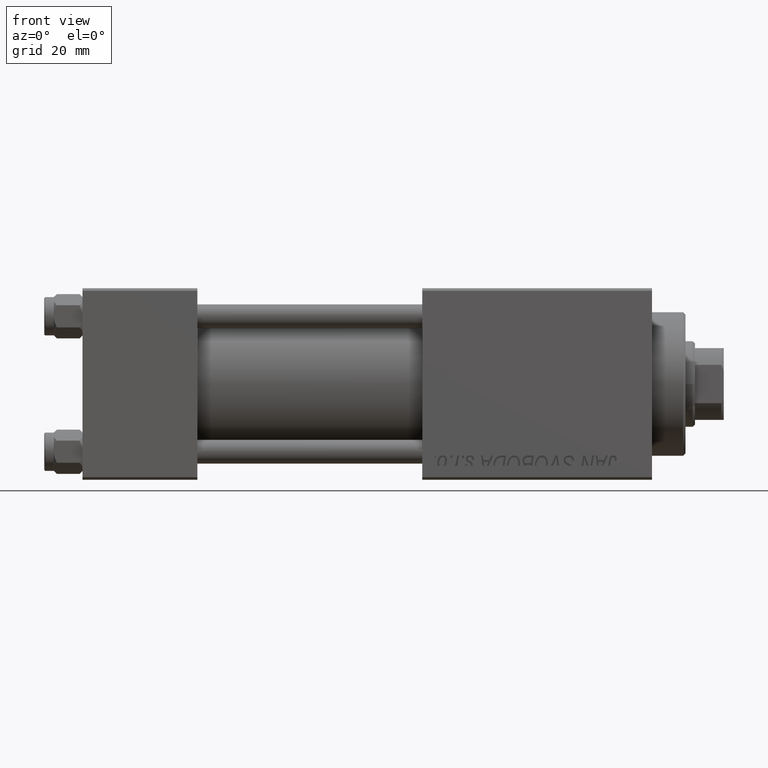
[diagram: clean part render]
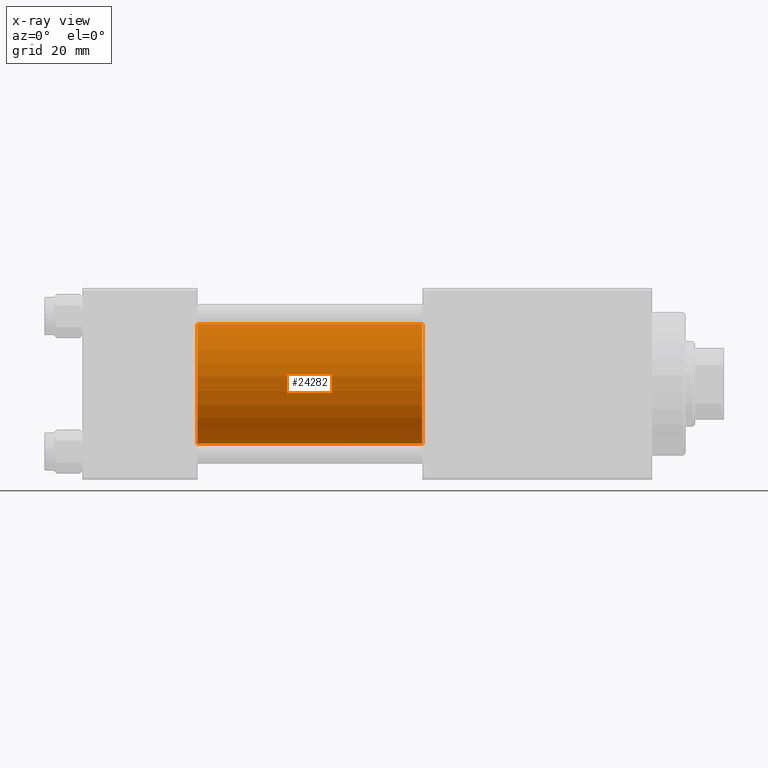
[diagram: x-ray — body ghosted, one internal face saturated and labeled with its STEP entity id]
A machine part, front view, then the same camera in x-ray: the body is ghosted and one INTERNAL B-rep face — a face not visible from any outside direction — is saturated and labeled: STEP entity #24282.
In plain terms, the highlighted cylindrical surface (partial cylindrical patch) has radius 12.5 mm, axis along (-1, -0, -0).
Its self-contained STEP definition (entity closure, byte-faithful):
#441 = DIRECTION ( 'NONE',  ( -1.000000000000000000, -0.000000000000000000, -0.000000000000000000 ) ) ;
#1852 = DIRECTION ( 'NONE',  ( -1.000000000000000000, -0.000000000000000000, -0.000000000000000000 ) ) ;
#2277 = VERTEX_POINT ( 'NONE', #26166 ) ;
#3353 = DIRECTION ( 'NONE',  ( 1.000000000000000000, 0.000000000000000000, 0.000000000000000000 ) ) ;
#6427 = ORIENTED_EDGE ( 'NONE', *, *, #22917, .T. ) ;
#6848 = LINE ( 'NONE', #25395, #47944 ) ;
#8021 = CARTESIAN_POINT ( 'NONE',  ( 71.00000000000001421, -2.602085213965210642E-15, 12.49999999999999645 ) ) ;
#8752 = EDGE_CURVE ( 'NONE', #26980, #2277, #6848, .T. ) ;
#13327 = EDGE_CURVE ( 'NONE', #2277, #45606, #29513, .T. ) ;
#14048 = EDGE_LOOP ( 'NONE', ( #19794, #6427, #24246, #46792 ) ) ;
#17934 = AXIS2_PLACEMENT_3D ( 'NONE', #45016, #1852, #45263 ) ;
#18850 = DIRECTION ( 'NONE',  ( 0.000000000000000000, 0.000000000000000000, -1.000000000000000000 ) ) ;
#19794 = ORIENTED_EDGE ( 'NONE', *, *, #28136, .T. ) ;
#22917 = EDGE_CURVE ( 'NONE', #24788, #45606, #34987, .T. ) ;
#24246 = ORIENTED_EDGE ( 'NONE', *, *, #13327, .F. ) ;
#24282 = ADVANCED_FACE ( 'NONE', ( #29772 ), #45520, .F. ) ;
#24788 = VERTEX_POINT ( 'NONE', #37714 ) ;
#25395 = CARTESIAN_POINT ( 'NONE',  ( 71.00000000000001421, -2.602085213965210642E-15, 12.49999999999999645 ) ) ;
#25522 = DIRECTION ( 'NONE',  ( 1.000000000000000000, 0.000000000000000000, 0.000000000000000000 ) ) ;
#26166 = CARTESIAN_POINT ( 'NONE',  ( 24.00000000000000000, -2.602085213965210642E-15, 12.49999999999999645 ) ) ;
#26980 = VERTEX_POINT ( 'NONE', #8021 ) ;
#27125 = CARTESIAN_POINT ( 'NONE',  ( 71.00000000000001421, -1.071276715031019515E-15, -12.49999999999999645 ) ) ;
#28136 = EDGE_CURVE ( 'NONE', #26980, #24788, #48851, .T. ) ;
#29513 = CIRCLE ( 'NONE', #41667, 12.49999999999999645 ) ;
#29772 = FACE_OUTER_BOUND ( 'NONE', #14048, .T. ) ;
#34987 = LINE ( 'NONE', #27125, #48691 ) ;
#37714 = CARTESIAN_POINT ( 'NONE',  ( 71.00000000000001421, -1.071276715031019515E-15, -12.49999999999999645 ) ) ;
#38135 = CARTESIAN_POINT ( 'NONE',  ( 71.00000000000001421, -2.602085213965210642E-15, 0.000000000000000000 ) ) ;
#41667 = AXIS2_PLACEMENT_3D ( 'NONE', #44814, #25522, #48372 ) ;
#44789 = AXIS2_PLACEMENT_3D ( 'NONE', #38135, #3353, #18850 ) ;
#44814 = CARTESIAN_POINT ( 'NONE',  ( 24.00000000000000000, -2.602085213965210642E-15, 0.000000000000000000 ) ) ;
#45016 = CARTESIAN_POINT ( 'NONE',  ( 71.00000000000001421, -2.602085213965210642E-15, 0.000000000000000000 ) ) ;
#45186 = DIRECTION ( 'NONE',  ( -1.000000000000000000, -0.000000000000000000, -0.000000000000000000 ) ) ;
#45263 = DIRECTION ( 'NONE',  ( 0.000000000000000000, 0.000000000000000000, 1.000000000000000000 ) ) ;
#45520 = CYLINDRICAL_SURFACE ( 'NONE', #17934, 12.49999999999999645 ) ;
#45606 = VERTEX_POINT ( 'NONE', #48428 ) ;
#46792 = ORIENTED_EDGE ( 'NONE', *, *, #8752, .F. ) ;
#47944 = VECTOR ( 'NONE', #45186, 1000.000000000000000 ) ;
#48372 = DIRECTION ( 'NONE',  ( 0.000000000000000000, 0.000000000000000000, -1.000000000000000000 ) ) ;
#48428 = CARTESIAN_POINT ( 'NONE',  ( 24.00000000000000000, -1.071276715031019515E-15, -12.49999999999999645 ) ) ;
#48691 = VECTOR ( 'NONE', #441, 1000.000000000000000 ) ;
#48851 = CIRCLE ( 'NONE', #44789, 12.49999999999999645 ) ;